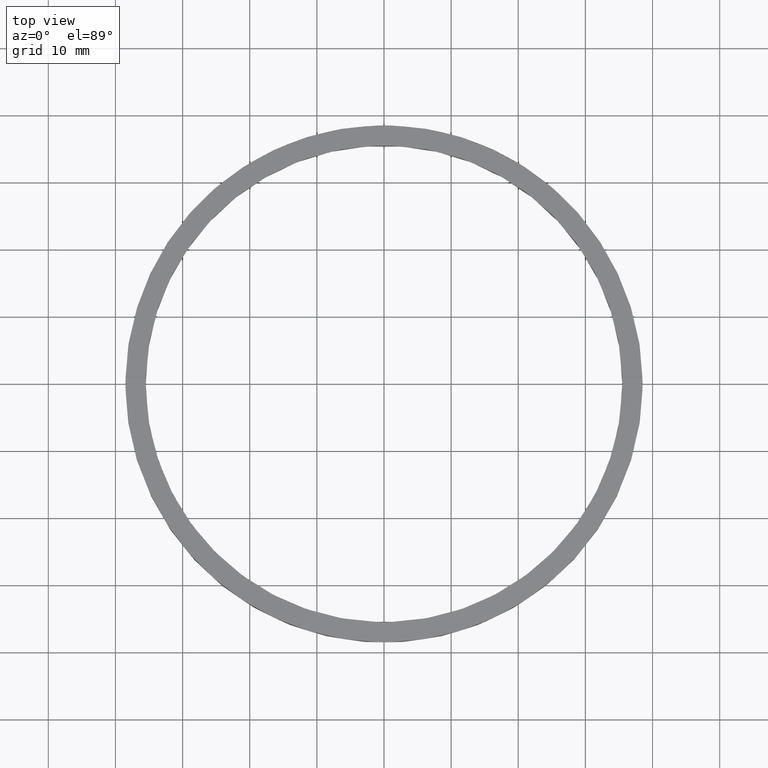
[diagram: clean part render]
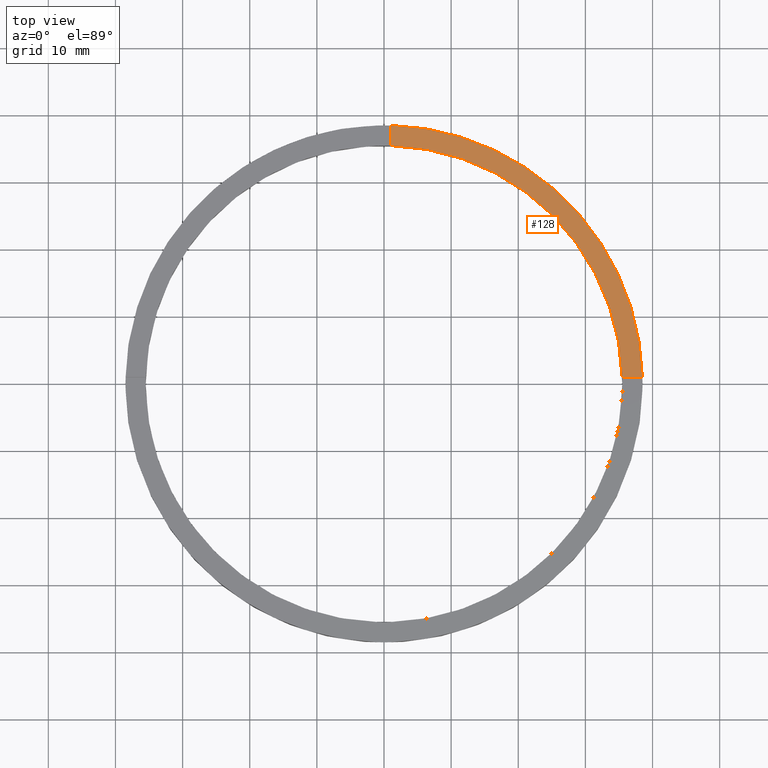
[diagram: same view with one face highlighted and labeled with its STEP entity id]
A machine part, top view. The second image highlights one B-rep face of the part: STEP entity #128.
In plain terms, the highlighted planar face has unit normal (0, 0, 1).
Its self-contained STEP definition (entity closure, byte-faithful):
#25 = CARTESIAN_POINT ( 'NONE',  ( 0.000000000000000000, 0.000000000000000000, 3.500000000000000000 ) ) ;
#35 = DIRECTION ( 'NONE',  ( 1.000000000000000000, 0.000000000000000000, 0.000000000000000000 ) ) ;
#38 = DIRECTION ( 'NONE',  ( 0.000000000000000000, 0.000000000000000000, 1.000000000000000000 ) ) ;
#55 = LINE ( 'NONE', #624, #300 ) ;
#108 = LINE ( 'NONE', #177, #347 ) ;
#128 = ADVANCED_FACE ( 'NONE', ( #160 ), #473, .T. ) ;
#146 = VERTEX_POINT ( 'NONE', #688 ) ;
#160 = FACE_OUTER_BOUND ( 'NONE', #509, .T. ) ;
#177 = CARTESIAN_POINT ( 'NONE',  ( 28.49999999999998934, 0.9999999999998421263, 3.500000000000000000 ) ) ;
#202 = DIRECTION ( 'NONE',  ( 1.000000000000000000, 0.000000000000000000, 0.000000000000000000 ) ) ;
#240 = VERTEX_POINT ( 'NONE', #765 ) ;
#256 = VERTEX_POINT ( 'NONE', #521 ) ;
#300 = VECTOR ( 'NONE', #367, 1000.000000000000000 ) ;
#305 = DIRECTION ( 'NONE',  ( -1.000000000000000000, -6.505213034913025371E-17, -0.000000000000000000 ) ) ;
#309 = CARTESIAN_POINT ( 'NONE',  ( 0.000000000000000000, 0.000000000000000000, 3.500000000000000000 ) ) ;
#343 = EDGE_CURVE ( 'NONE', #256, #146, #55, .T. ) ;
#344 = CIRCLE ( 'NONE', #755, 35.50000000000000711 ) ;
#347 = VECTOR ( 'NONE', #305, 1000.000000000000000 ) ;
#367 = DIRECTION ( 'NONE',  ( 0.000000000000000000, 1.000000000000000000, 0.000000000000000000 ) ) ;
#373 = ORIENTED_EDGE ( 'NONE', *, *, #343, .F. ) ;
#431 = CARTESIAN_POINT ( 'NONE',  ( 0.000000000000000000, 0.000000000000000000, 3.500000000000000000 ) ) ;
#450 = AXIS2_PLACEMENT_3D ( 'NONE', #309, #38, #202 ) ;
#451 = VERTEX_POINT ( 'NONE', #748 ) ;
#465 = ORIENTED_EDGE ( 'NONE', *, *, #535, .F. ) ;
#473 = PLANE ( 'NONE',  #717 ) ;
#474 = ORIENTED_EDGE ( 'NONE', *, *, #476, .F. ) ;
#476 = EDGE_CURVE ( 'NONE', #451, #240, #108, .T. ) ;
#509 = EDGE_LOOP ( 'NONE', ( #373, #465, #474, #714 ) ) ;
#521 = CARTESIAN_POINT ( 'NONE',  ( 0.9999999999999746869, 35.48591269785801217, 3.500000000000000000 ) ) ;
#535 = EDGE_CURVE ( 'NONE', #240, #256, #344, .T. ) ;
#546 = DIRECTION ( 'NONE',  ( 0.000000000000000000, 0.000000000000000000, 1.000000000000000000 ) ) ;
#549 = DIRECTION ( 'NONE',  ( 0.000000000000000000, 0.000000000000000000, 1.000000000000000000 ) ) ;
#579 = CIRCLE ( 'NONE', #450, 38.50000000000000000 ) ;
#624 = CARTESIAN_POINT ( 'NONE',  ( 0.9999999999999746869, 28.49999999999999645, 3.500000000000000000 ) ) ;
#683 = EDGE_CURVE ( 'NONE', #451, #146, #579, .T. ) ;
#688 = CARTESIAN_POINT ( 'NONE',  ( 0.9999999999999746869, 38.48701079585163143, 3.500000000000000000 ) ) ;
#714 = ORIENTED_EDGE ( 'NONE', *, *, #683, .T. ) ;
#717 = AXIS2_PLACEMENT_3D ( 'NONE', #25, #546, #772 ) ;
#748 = CARTESIAN_POINT ( 'NONE',  ( 38.48701079585163853, 0.9999999999998427924, 3.500000000000000000 ) ) ;
#755 = AXIS2_PLACEMENT_3D ( 'NONE', #431, #549, #35 ) ;
#765 = CARTESIAN_POINT ( 'NONE',  ( 35.48591269785801927, 0.9999999999998425704, 3.500000000000000000 ) ) ;
#772 = DIRECTION ( 'NONE',  ( 1.000000000000000000, 0.000000000000000000, -0.000000000000000000 ) ) ;